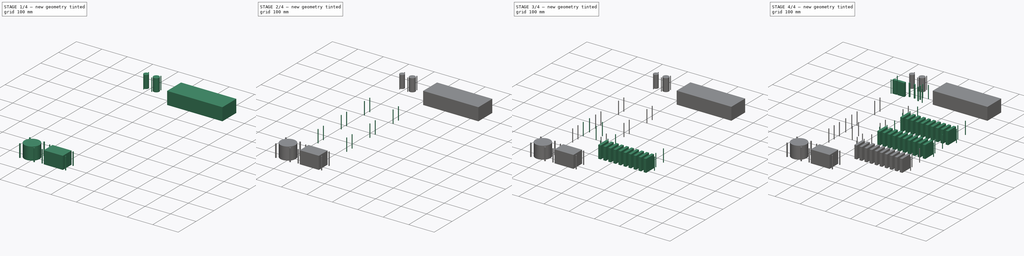
[diagram: build sequence overview — one tinted view per stage of 4, left to right]
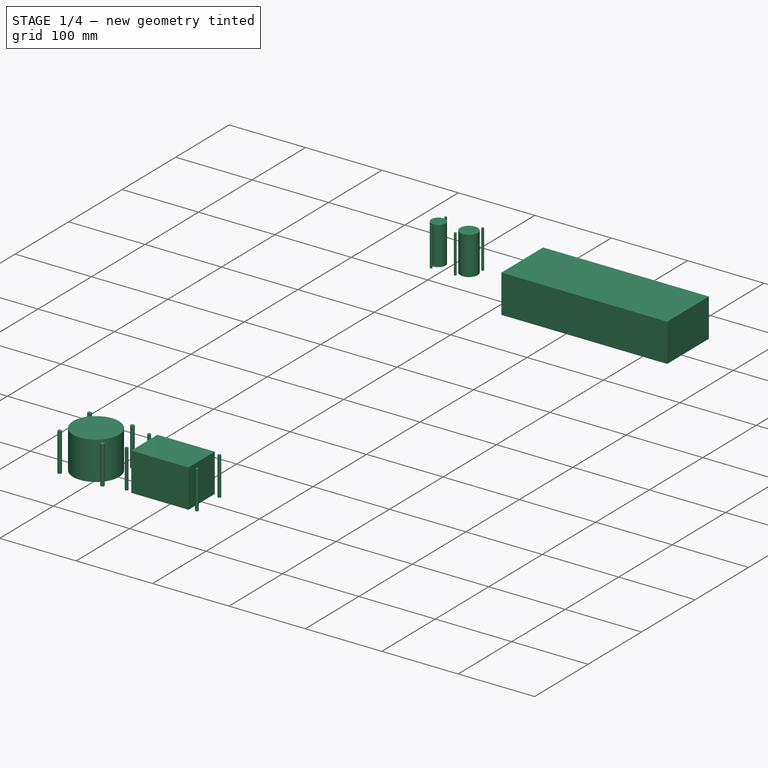
[diagram: stage 1 of 4 — iso view after this stage's code; geometry added in this stage tinted green]
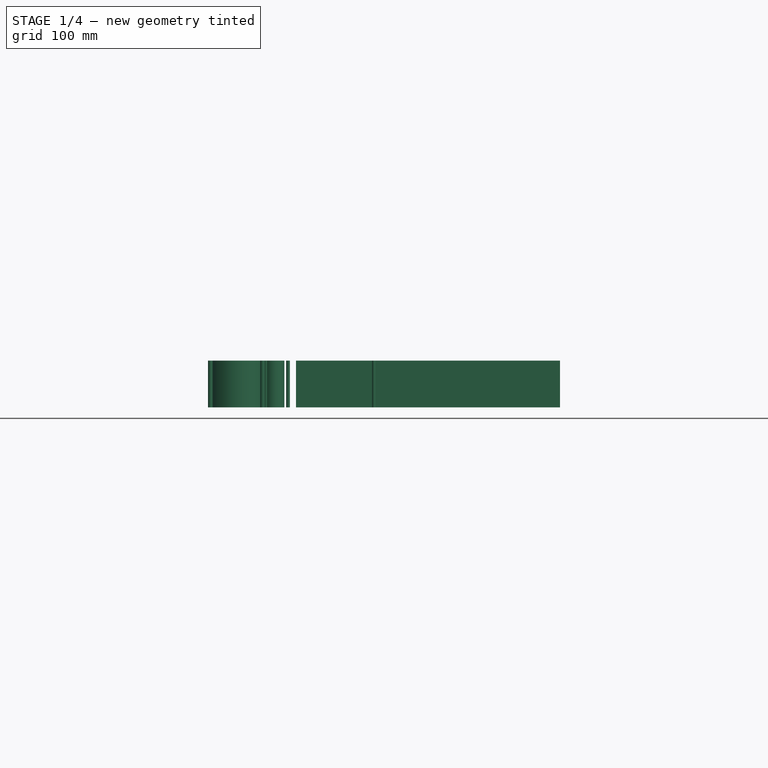
[diagram: stage 1 of 4 — front view after this stage's code; geometry added in this stage tinted green]
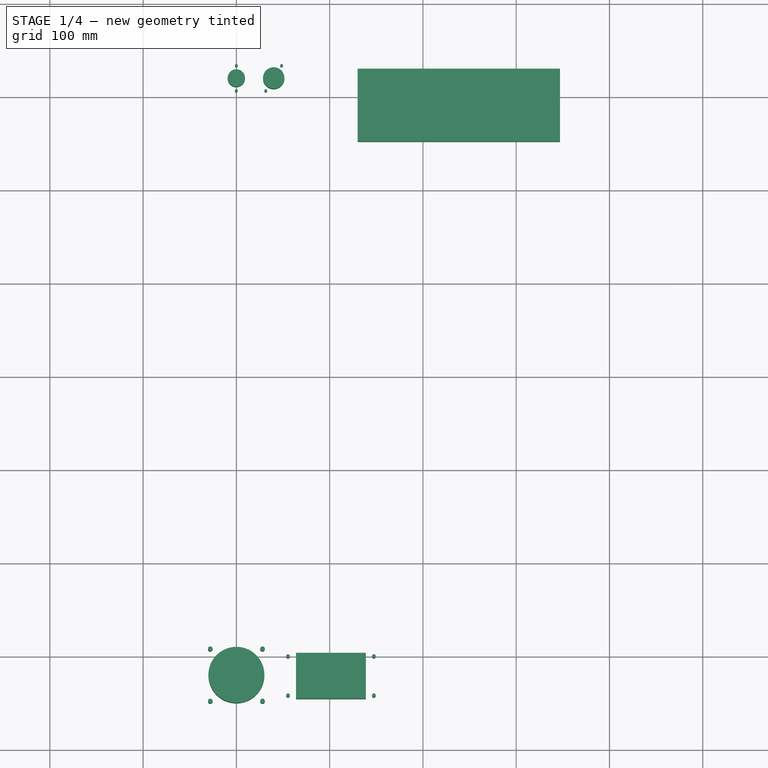
[diagram: stage 1 of 4 — top view after this stage's code; geometry added in this stage tinted green]
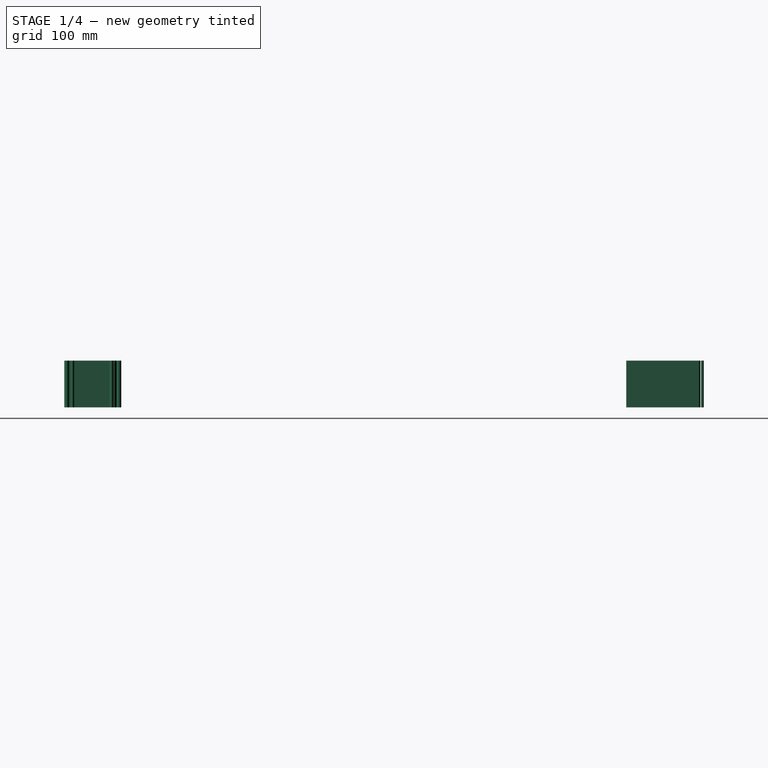
[diagram: stage 1 of 4 — right view after this stage's code; geometry added in this stage tinted green]
FCSTD DOCUMENT
Label: rack3u_padded
License: CC-BY 3.0
LicenseURL: http://creativecommons.org/licenses/by/3.0/
objects: Sketcher::SketchObject×12, PartDesign::Pad×11
note: 34 computed .brp shape members not serialized (recipe doc carries the construction recipe); baked Part::Feature solids carry a one-line shape summary decoded from their .brp

FEATURE [PartDesign::Pad] Pad008
  Length = 50
  Length2 = 100
  Sketch = -> Sketch002004003
  Type = 0
FEATURE [PartDesign::Pad] Pad009
  Length = 50
  Length2 = 100
  Sketch = -> Sketch002004004
  Type = 0
FEATURE [PartDesign::Pad] Pad010
  Length = 50
  Length2 = 100
  Sketch = -> Sketch002004005
  Type = 0
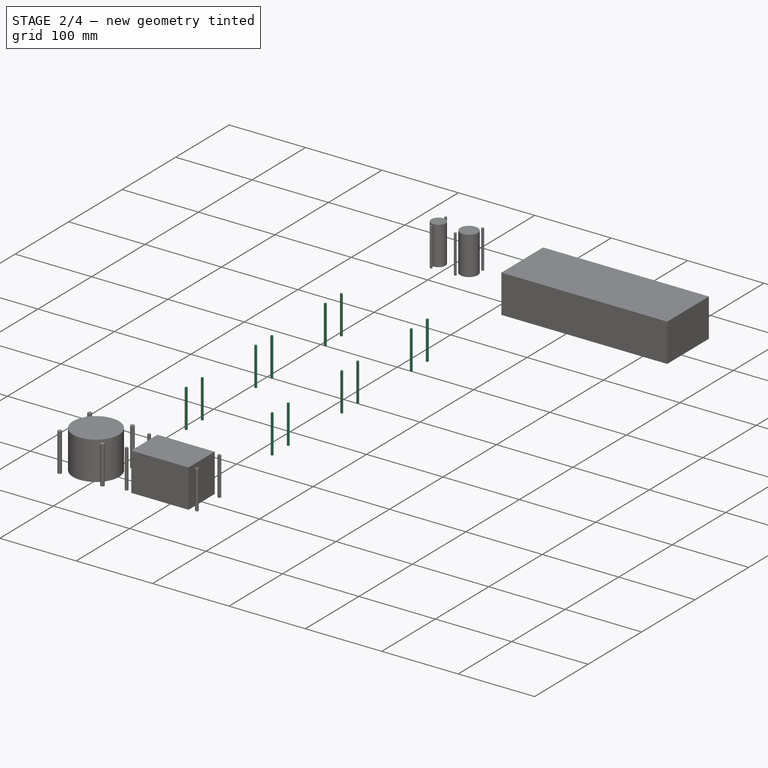
[diagram: stage 2 of 4 — iso view after this stage's code; geometry added in this stage tinted green]
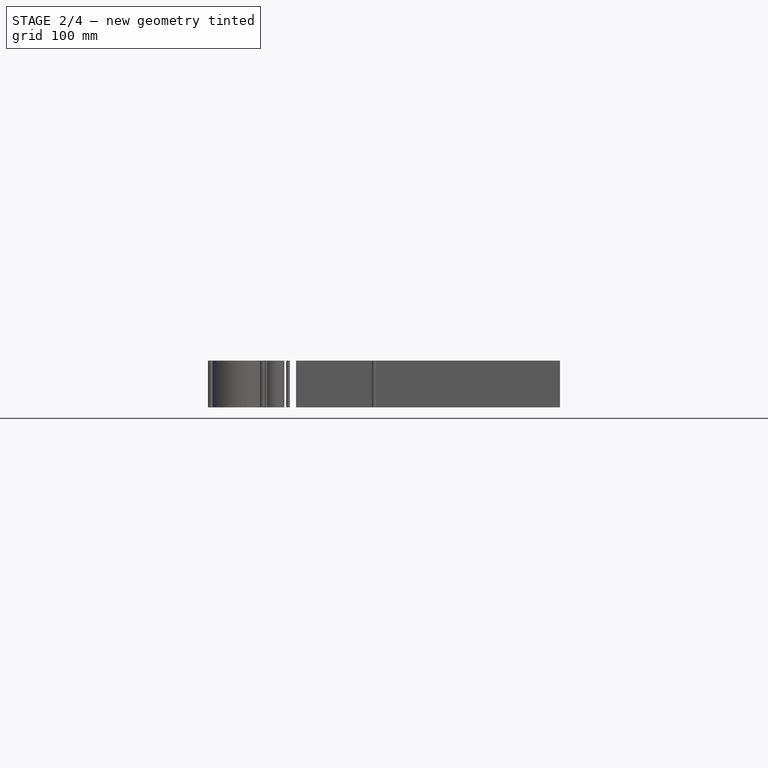
[diagram: stage 2 of 4 — front view after this stage's code; geometry added in this stage tinted green]
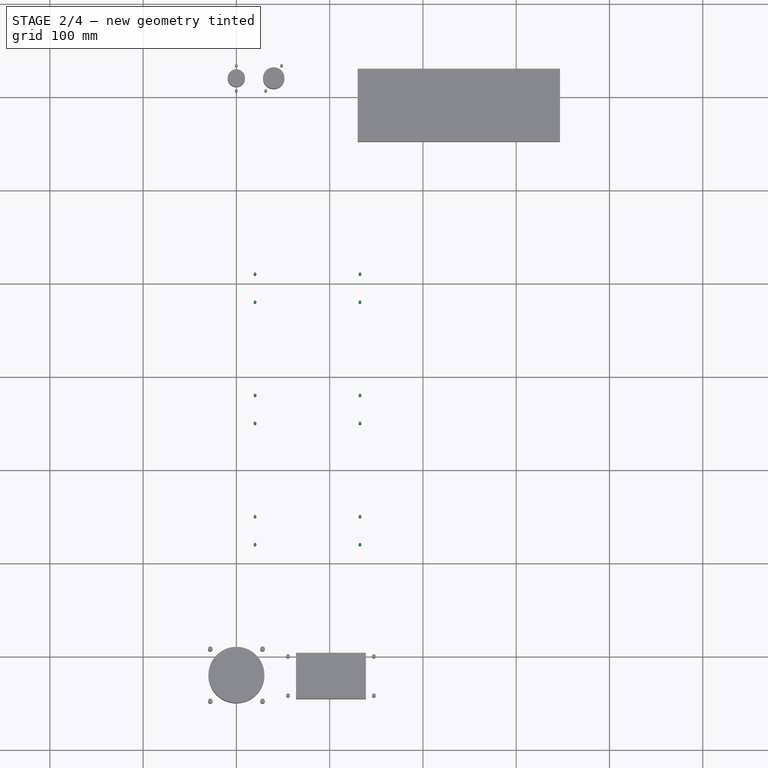
[diagram: stage 2 of 4 — top view after this stage's code; geometry added in this stage tinted green]
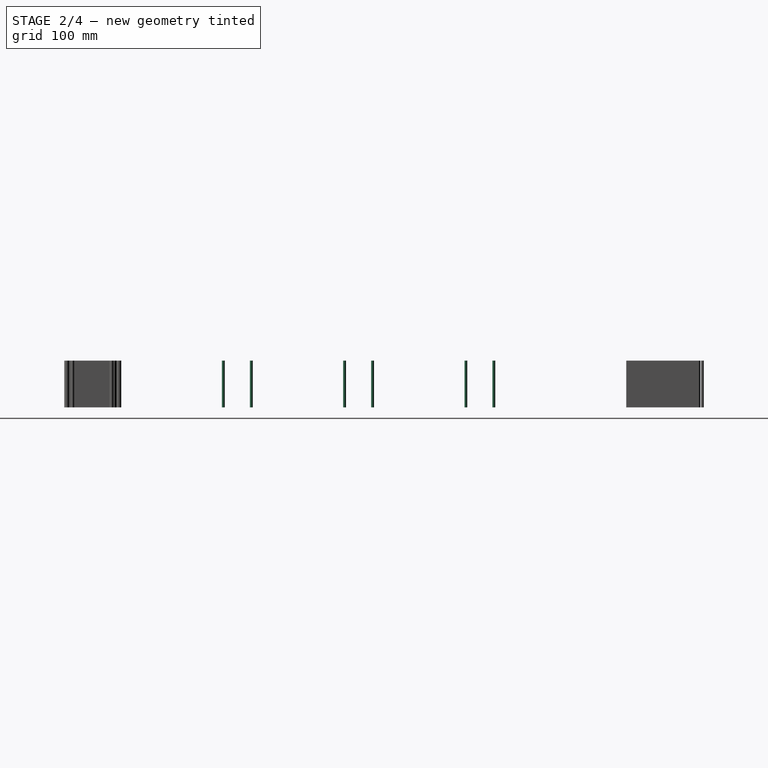
[diagram: stage 2 of 4 — right view after this stage's code; geometry added in this stage tinted green]
FEATURE [PartDesign::Pad] Pad005
  Length = 50
  Length2 = 100
  Sketch = -> Sketch002004
  Type = 0
FEATURE [PartDesign::Pad] Pad006
  Length = 50
  Length2 = 100
  Sketch = -> Sketch002004001
  Type = 0
FEATURE [PartDesign::Pad] Pad007
  Length = 50
  Length2 = 100
  Sketch = -> Sketch002004002
  Type = 0
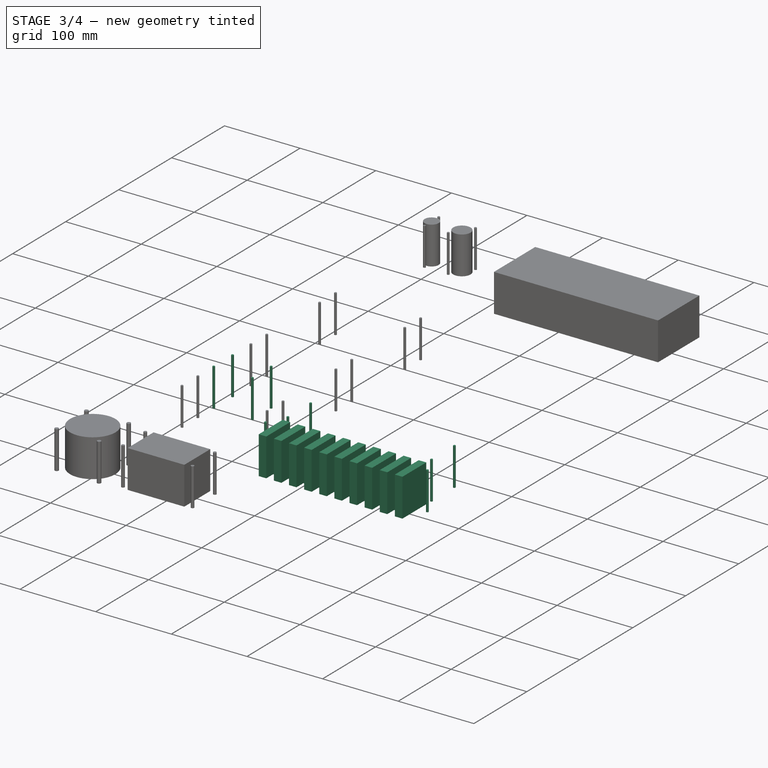
[diagram: stage 3 of 4 — iso view after this stage's code; geometry added in this stage tinted green]
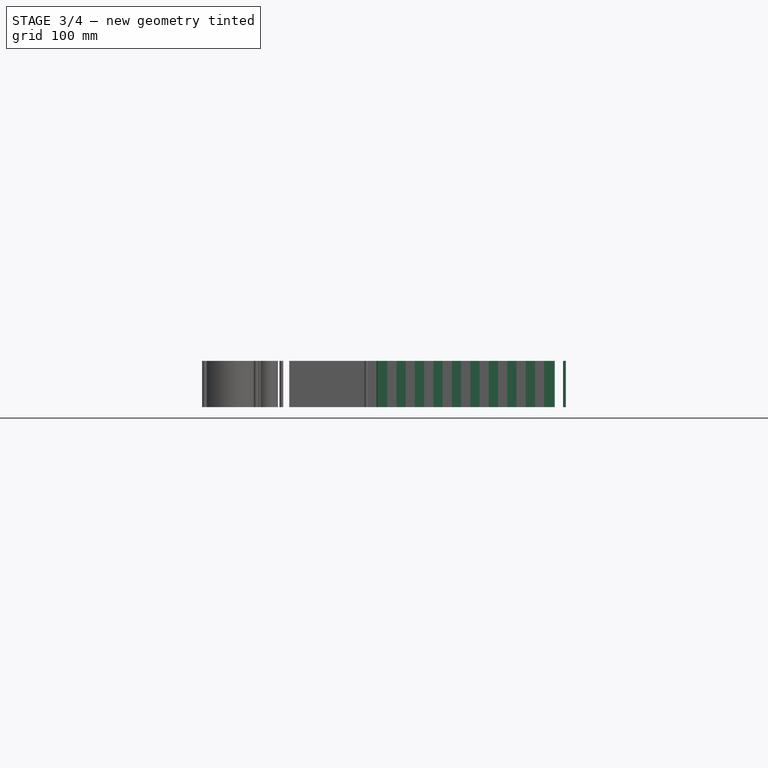
[diagram: stage 3 of 4 — front view after this stage's code; geometry added in this stage tinted green]
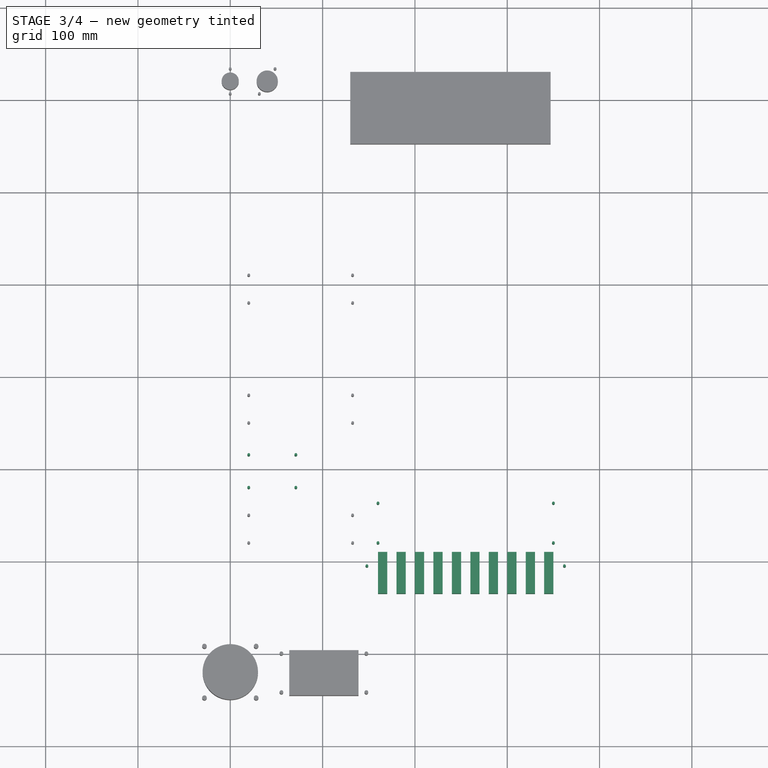
[diagram: stage 3 of 4 — top view after this stage's code; geometry added in this stage tinted green]
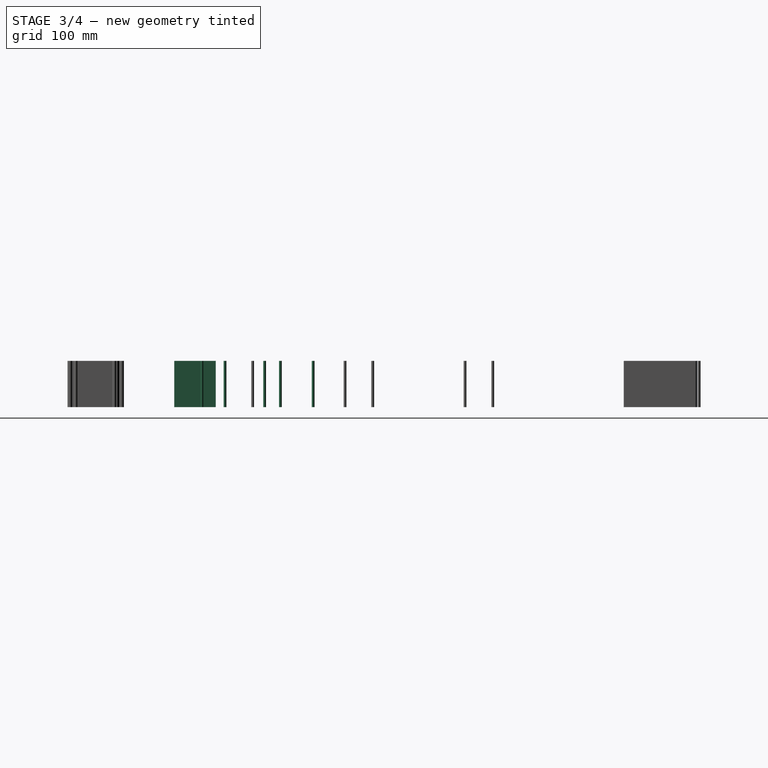
[diagram: stage 3 of 4 — right view after this stage's code; geometry added in this stage tinted green]
FEATURE [PartDesign::Pad] Pad003
  Length = 50
  Length2 = 100
  Sketch = -> Sketch002002
  Type = 0
FEATURE [PartDesign::Pad] Pad004
  Length = 50
  Length2 = 100
  Sketch = -> Sketch002003
  Type = 0
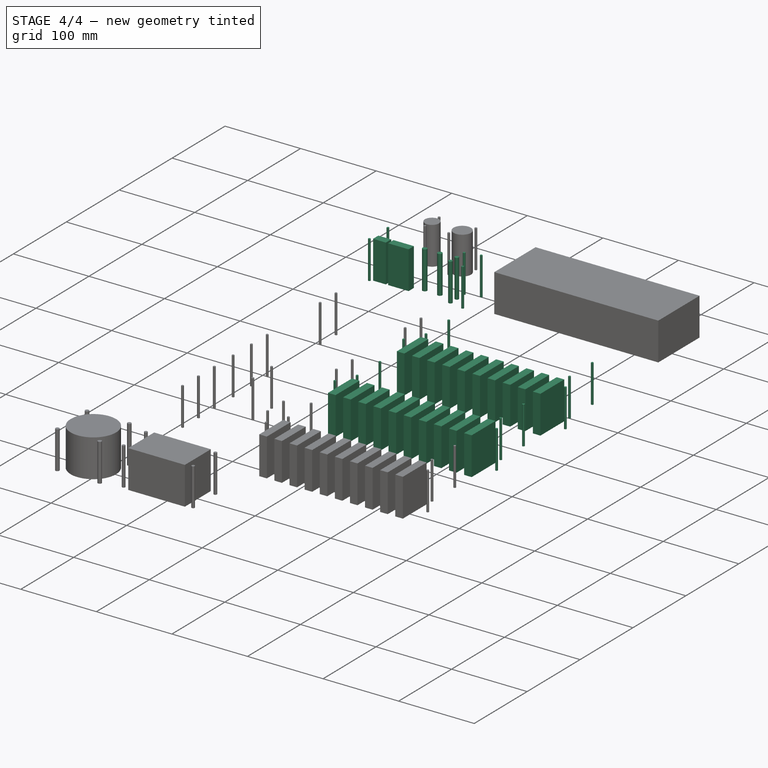
[diagram: stage 4 of 4 — iso view after this stage's code; geometry added in this stage tinted green]
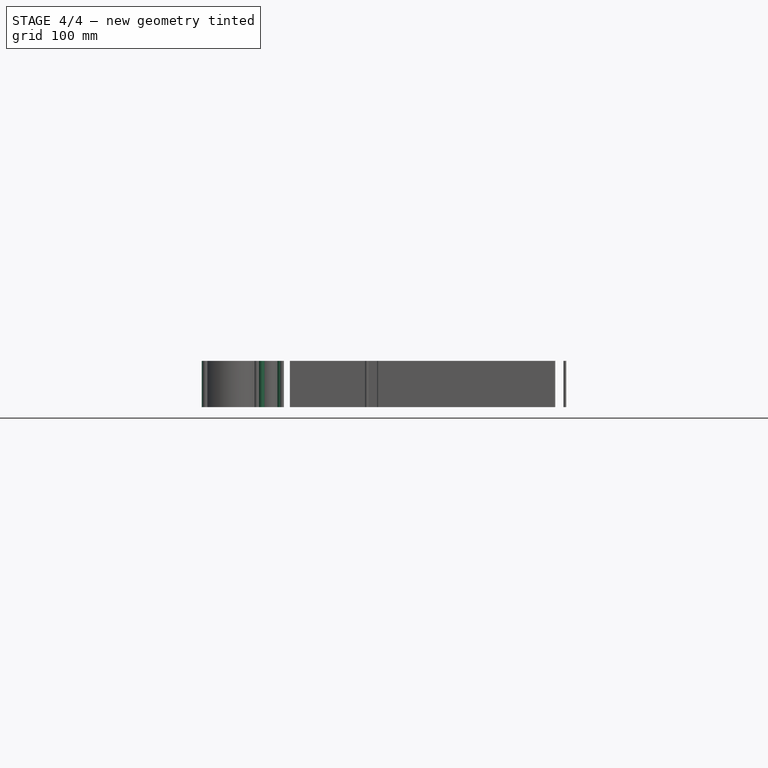
[diagram: stage 4 of 4 — front view after this stage's code; geometry added in this stage tinted green]
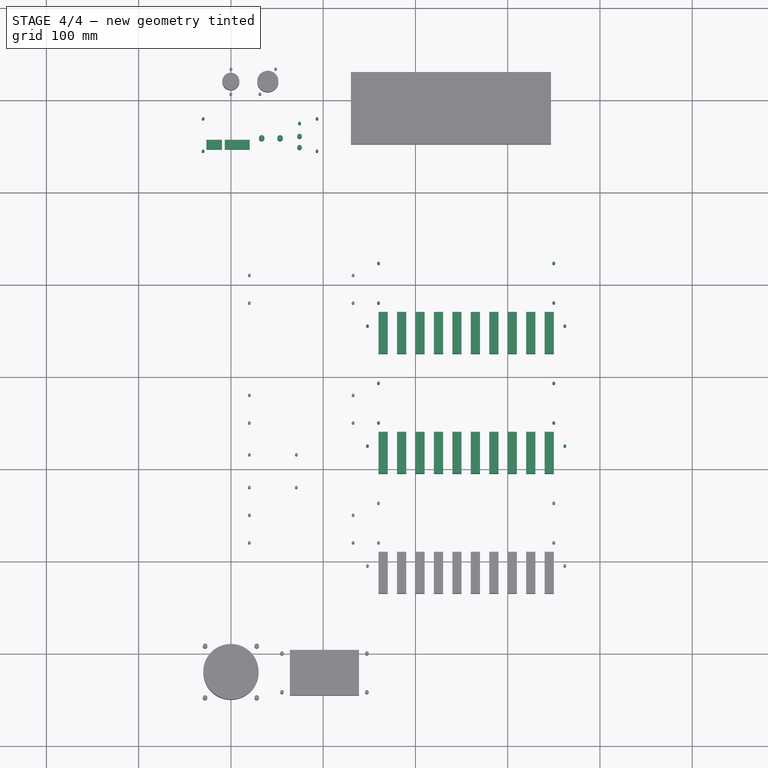
[diagram: stage 4 of 4 — top view after this stage's code; geometry added in this stage tinted green]
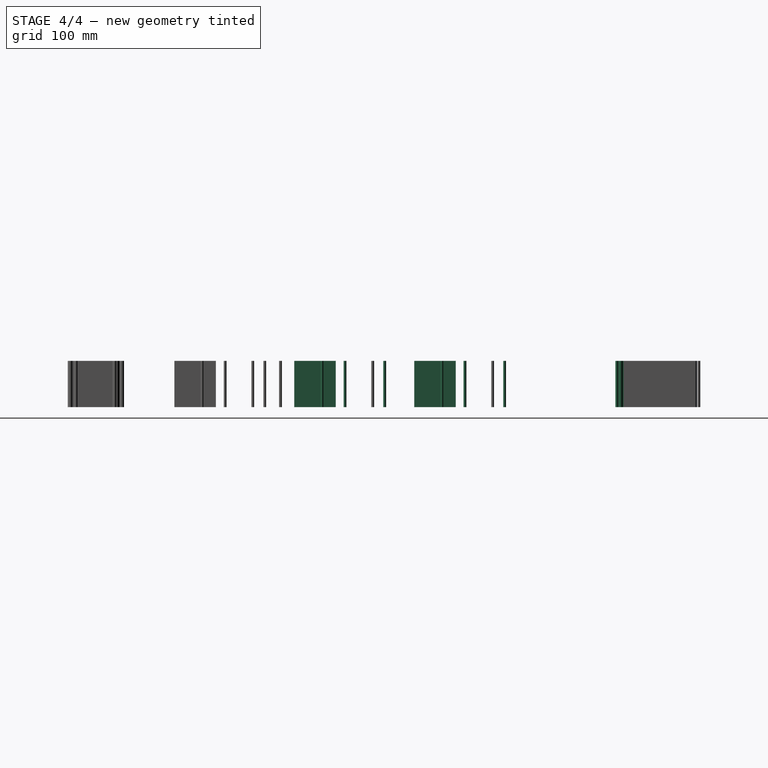
[diagram: stage 4 of 4 — right view after this stage's code; geometry added in this stage tinted green]
FEATURE [Sketcher::SketchObject] Sketch  label="lineout"
  sketch-geometry (36):
    g0: LineSegment StartX=148.885 StartY=25.9614 StartZ=0 EndX=583.885 EndY=25.9614 EndZ=0
    g1: LineSegment StartX=583.885 StartY=25.9614 StartZ=0 EndX=583.885 EndY=-456.639 EndZ=0
    g2: LineSegment StartX=583.885 StartY=-456.639 StartZ=0 EndX=148.885 EndY=-456.639 EndZ=0
    g3: LineSegment StartX=148.885 StartY=-456.639 StartZ=0 EndX=148.885 EndY=25.9614 EndZ=0
    g4: LineSegment StartX=125.385 StartY=25.9614 StartZ=0 EndX=607.985 EndY=25.9614 EndZ=0
    g5: LineSegment StartX=607.985 StartY=25.9614 StartZ=0 EndX=607.985 EndY=159.311 EndZ=0
    g6: LineSegment StartX=607.985 StartY=159.311 StartZ=0 EndX=125.385 EndY=159.311 EndZ=0
    g7: LineSegment StartX=125.385 StartY=159.311 StartZ=0 EndX=125.385 EndY=25.9614 EndZ=0
    g8: LineSegment StartX=583.885 StartY=25.9614 StartZ=0 EndX=717.235 EndY=25.9614 EndZ=0
    g9: LineSegment StartX=717.235 StartY=25.9614 StartZ=0 EndX=717.235 EndY=-456.639 EndZ=0
    g10: LineSegment StartX=717.235 StartY=-456.639 StartZ=0 EndX=583.885 EndY=-456.639 EndZ=0
    g11: LineSegment StartX=583.885 StartY=-456.639 StartZ=0 EndX=583.885 EndY=25.9614 EndZ=0
    g12: LineSegment StartX=148.885 StartY=25.9614 StartZ=0 EndX=15.5354 EndY=25.9614 EndZ=0
    g13: LineSegment StartX=15.5354 StartY=25.9614 StartZ=0 EndX=15.5354 EndY=-456.639 EndZ=0
    g14: LineSegment StartX=15.5354 StartY=-456.639 StartZ=0 EndX=148.885 EndY=-456.639 EndZ=0
    g15: LineSegment StartX=148.885 StartY=-456.639 StartZ=0 EndX=148.885 EndY=25.9614 EndZ=0
    g16: LineSegment StartX=148.885 StartY=-456.639 StartZ=0 EndX=583.885 EndY=-456.639 EndZ=0
    g17: LineSegment StartX=583.885 StartY=-456.639 StartZ=0 EndX=583.885 EndY=-589.989 EndZ=0
    g18: LineSegment StartX=583.885 StartY=-589.989 StartZ=0 EndX=148.885 EndY=-589.989 EndZ=0
    g19: LineSegment StartX=148.885 StartY=-589.989 StartZ=0 EndX=148.885 EndY=-456.639 EndZ=0
    g20: LineSegment StartX=850.937 StartY=24.6344 StartZ=0 EndX=1285.94 EndY=24.6344 EndZ=0
    g21: LineSegment StartX=1285.94 StartY=24.6344 StartZ=0 EndX=1285.94 EndY=-457.966 EndZ=0
    g22: LineSegment StartX=1285.94 StartY=-457.966 StartZ=0 EndX=850.937 EndY=-457.966 EndZ=0
    g23: LineSegment StartX=850.937 StartY=-457.966 StartZ=0 EndX=850.937 EndY=24.6344 EndZ=0
    g24: LineSegment StartX=717.235 StartY=-456.639 StartZ=0 EndX=727.235 EndY=-446.639 EndZ=0
    g25: LineSegment StartX=727.235 StartY=-446.639 StartZ=0 EndX=727.235 EndY=15.9614 EndZ=0
    g26: LineSegment StartX=727.235 StartY=15.9614 StartZ=0 EndX=717.235 EndY=25.9614 EndZ=0
    g27: LineSegment StartX=583.885 StartY=-589.989 StartZ=0 EndX=573.885 EndY=-599.989 EndZ=0
    g28: LineSegment StartX=573.885 StartY=-599.989 StartZ=0 EndX=158.885 EndY=-599.989 EndZ=0
    g29: LineSegment StartX=158.885 StartY=-599.989 StartZ=0 EndX=148.885 EndY=-589.989 EndZ=0
    g30: LineSegment StartX=15.5354 StartY=-456.639 StartZ=0 EndX=5.53542 EndY=-446.639 EndZ=0
    g31: LineSegment StartX=5.53542 StartY=-446.639 StartZ=0 EndX=5.53542 EndY=15.9614 EndZ=0
    g32: LineSegment StartX=5.53542 StartY=15.9614 StartZ=0 EndX=15.5354 EndY=25.9614 EndZ=0
    g33: LineSegment StartX=149.185 StartY=159.311 StartZ=0 EndX=159.185 EndY=169.311 EndZ=0
    g34: LineSegment StartX=159.185 StartY=169.311 StartZ=0 EndX=574.764 EndY=169.311 EndZ=0
    g35: LineSegment StartX=574.764 StartY=169.311 StartZ=0 EndX=584.764 EndY=159.311 EndZ=0
  constraints (98):
    c: Coincident(g0,g1)
    c: Coincident(g1,g2)
    c: Coincident(g2,g3)
    c: Coincident(g3,g0)
    c: Horizontal(g0)
    c: Horizontal(g2)
    c: Vertical(g1)
    c: Vertical(g3)
    c: Coincident(g4,g5)
    c: Coincident(g5,g6)
    c: Coincident(g6,g7)
    c: Coincident(g7,g4)
    c: Horizontal(g4)
    c: Horizontal(g6)
    c: Vertical(g5)
    c: Vertical(g7)
    c: Coincident(g8,g9)
    c: Coincident(g9,g10)
    c: Coincident(g10,g11)
    c: Coincident(g11,g8)
    c: Horizontal(g8)
    c: Horizontal(g10)
    c: Vertical(g9)
    c: Vertical(g11)
    c: Coincident(g12,g13)
    c: Coincident(g13,g14)
    c: Coincident(g14,g15)
    c: Coincident(g15,g12)
    c: Horizontal(g12)
    c: Horizontal(g14)
    c: Vertical(g13)
    c: Vertical(g15)
    c: Coincident(g16,g17)
    c: Coincident(g17,g18)
    c: Coincident(g18,g19)
    c: Coincident(g19,g16)
    c: Horizontal(g16)
    c: Horizontal(g18)
    c: Vertical(g17)
    c: Vertical(g19)
    c: Distance(g18) = 435
    c: Distance(g13) = 482.6
    c: Distance(g19) = 133.35
    c: Coincident(g16,g14)
    c: Equal(g19,g14)
    c: Coincident(g14,g2)
    c: Coincident(g1,g10)
    c: Coincident(g1,g16)
    c: Equal(g10,g17)
    c: Equal(g12,g7)
    c: Distance(g6) = 482.6
    c: Tangent(g4,g0)
    c: Coincident(g12,g0)
    c: Coincident(g8,g0)
    c: Distance(g4,g12) = 109.85
    c: Coincident(g20,g21)
    c: Coincident(g21,g22)
    c: Coincident(g22,g23)
    c: Coincident(g23,g20)
    c: Horizontal(g20)
    c: Horizontal(g22)
    c: Vertical(g21)
    c: Vertical(g23)
    c: Equal(g22,g18)
    c: Equal(g23,g13)
    c: Coincident(g9,g24)
    c: Coincident(g24,g25)
    c: Vertical(g25)
    c: Coincident(g25,g26)
    c: Coincident(g26,g8)
    c: Angle(g9,g26) = 0.785398
    c: Angle(g24,g9) = 0.785398
    c: DistanceX(g25,g8) = -10
    c: Coincident(g17,g27)
    c: Coincident(g27,g28)
    c: Horizontal(g28)
    c: Coincident(g28,g29)
    c: Coincident(g29,g18)
    c: Angle(g29,g18) = 0.785398
    c: Angle(g18,g27) = 0.785398
    c: Equal(g24,g27)
    c: Coincident(g13,g30)
    c: Coincident(g30,g31)
    c: Vertical(g31)
    c: Coincident(g31,g32)
    c: Coincident(g32,g12)
    c: Angle(g32,g13) = 0.785398
    c: Angle(g13,g30) = 0.785398
    c: Equal(g29,g30)
    c: Coincident(g33,g34)
    c: Horizontal(g34)
    c: Coincident(g34,g35)
    c: Angle(g6,g33) = 0.785398
    c: Angle(g35,g6) = 0.785398
    c: PointOnObject(g35,g6)
    c: PointOnObject(g33,g6)
    c: DistanceY(g34,g35) = -10
    c: DistanceX(g33,g6) = -23.8
FEATURE [Sketcher::SketchObject] Sketch001  label="panel"
  sketch-geometry (17):
    g0: Circle CenterX=169.861 CenterY=79.6084 CenterZ=0 NormalX=0 NormalY=0 NormalZ=1 Radius=1.5
    g1: Circle CenterX=169.861 CenterY=44.6084 CenterZ=0 NormalX=0 NormalY=0 NormalZ=1 Radius=1.5
    g2: Circle CenterX=293.361 CenterY=79.6084 CenterZ=0 NormalX=0 NormalY=0 NormalZ=1 Radius=1.5
    g3: Circle CenterX=293.361 CenterY=44.6084 CenterZ=0 NormalX=0 NormalY=0 NormalZ=1 Radius=1.5
    g4: LineSegment StartX=173.361 StartY=56.6084 StartZ=0 EndX=190.361 EndY=56.6084 EndZ=0
    g5: LineSegment StartX=190.361 StartY=56.6084 StartZ=0 EndX=190.361 EndY=46.6084 EndZ=0
    g6: LineSegment StartX=190.361 StartY=46.6084 StartZ=0 EndX=173.361 EndY=46.6084 EndZ=0
    g7: LineSegment StartX=173.361 StartY=46.6084 StartZ=0 EndX=173.361 EndY=56.6084 EndZ=0
    g8: LineSegment StartX=193.361 StartY=56.6084 StartZ=0 EndX=220.361 EndY=56.6084 EndZ=0
    g9: LineSegment StartX=220.361 StartY=56.6084 StartZ=0 EndX=220.361 EndY=46.6084 EndZ=0
    g10: LineSegment StartX=220.361 StartY=46.6084 StartZ=0 EndX=193.361 EndY=46.6084 EndZ=0
    g11: LineSegment StartX=193.361 StartY=46.6084 StartZ=0 EndX=193.361 EndY=56.6084 EndZ=0
    g12: Circle CenterX=233.361 CenterY=58.6084 CenterZ=0 NormalX=0 NormalY=0 NormalZ=1 Radius=3
    g13: Circle CenterX=253.361 CenterY=58.6084 CenterZ=0 NormalX=0 NormalY=0 NormalZ=1 Radius=3
    g14: Circle CenterX=274.361 CenterY=48.6084 CenterZ=0 NormalX=0 NormalY=0 NormalZ=1 Radius=2.5
    g15: Circle CenterX=274.361 CenterY=60.6084 CenterZ=0 NormalX=0 NormalY=0 NormalZ=1 Radius=2.5
    g16: Circle CenterX=274.361 CenterY=74.6084 CenterZ=0 NormalX=0 NormalY=0 NormalZ=1 Radius=1.6
  constraints (49):
    c: Radius(g0) = 1.5
    c: Equal(g2,g0)
    c: Equal(g3,g0)
    c: Equal(g1,g0)
    c: DistanceX(g2,g0) = -123.5
    c: DistanceY(g3,g2) = 35
    c: DistanceY(g1,g0) = 35
    c: DistanceX(g1,g3) = 123.5
    c: DistanceY(g0,g2) = 0
    c: DistanceX(g0,g1) = 0
    c: Coincident(g4,g5)
    c: Coincident(g5,g6)
    c: Coincident(g6,g7)
    c: Coincident(g7,g4)
    c: Horizontal(g4)
    c: Horizontal(g6)
    c: Vertical(g5)
    c: Vertical(g7)
    c: Coincident(g8,g9)
    c: Coincident(g9,g10)
    c: Coincident(g10,g11)
    c: Coincident(g11,g8)
    c: Horizontal(g8)
    c: Horizontal(g10)
    c: Vertical(g9)
    c: Vertical(g11)
    c: Radius(g12) = 3
    c: Equal(g13,g12)
    c: Radius(g14) = 2.5
    c: Equal(g14,g15)
    c: Radius(g16) = 1.6
    c: DistanceX(g14,g15) = 0
    c: DistanceX(g15,g16) = 0
    c: DistanceY(g14,g15) = 12
    c: DistanceY(g15,g16) = 14
    c: DistanceY(g14,g3) = -4
    c: DistanceX(g14,g3) = 19
    c: DistanceX(g14,g13) = -21
    c: DistanceX(g12,g13) = 20
    c: DistanceY(g12,g13) = 0
    c: DistanceY(g13,g3) = -14
    c: Distance(g7) = 10
    c: Distance(g6) = 17
    c: Distance(g10) = 27
    c: Equal(g11,g5)
    c: DistanceX(g10,g5) = -3
    c: DistanceY(g5,g10) = 0
    c: DistanceY(g1,g6) = 2
    c: DistanceX(g6,g1) = -3.5
FEATURE [Sketcher::SketchObject] Sketch002  label="dimmer1"
  sketch-geometry (46):
    g0: Circle CenterX=360 CenterY=-77 CenterZ=0 NormalX=0 NormalY=0 NormalZ=1 Radius=1.5
    g1: Circle CenterX=360 CenterY=-120 CenterZ=0 NormalX=0 NormalY=0 NormalZ=1 Radius=1.5
    g2: Circle CenterX=550 CenterY=-77 CenterZ=0 NormalX=0 NormalY=0 NormalZ=1 Radius=1.5
    g3: Circle CenterX=550 CenterY=-120 CenterZ=0 NormalX=0 NormalY=0 NormalZ=1 Radius=1.5
    g4: Circle CenterX=348 CenterY=-145 CenterZ=0 NormalX=0 NormalY=0 NormalZ=1 Radius=1.5
    g5: Circle CenterX=562 CenterY=-145 CenterZ=0 NormalX=0 NormalY=0 NormalZ=1 Radius=1.5
    g6: LineSegment StartX=540 StartY=-130 StartZ=0 EndX=550 EndY=-130 EndZ=0
    g7: LineSegment StartX=550 StartY=-130 StartZ=0 EndX=550 EndY=-175 EndZ=0
    g8: LineSegment StartX=550 StartY=-175 StartZ=0 EndX=540 EndY=-175 EndZ=0
    g9: LineSegment StartX=540 StartY=-175 StartZ=0 EndX=540 EndY=-130 EndZ=0
    g10: LineSegment StartX=530 StartY=-130 StartZ=0 EndX=520 EndY=-130 EndZ=0
    g11: LineSegment StartX=520 StartY=-130 StartZ=0 EndX=520 EndY=-175 EndZ=0
    g12: LineSegment StartX=520 StartY=-175 StartZ=0 EndX=530 EndY=-175 EndZ=0
    g13: LineSegment StartX=530 StartY=-175 StartZ=0 EndX=530 EndY=-130 EndZ=0
    g14: LineSegment StartX=510 StartY=-130 StartZ=0 EndX=500 EndY=-130 EndZ=0
    g15: LineSegment StartX=500 StartY=-130 StartZ=0 EndX=500 EndY=-175 EndZ=0
    g16: LineSegment StartX=500 StartY=-175 StartZ=0 EndX=510 EndY=-175 EndZ=0
    g17: LineSegment StartX=510 StartY=-175 StartZ=0 EndX=510 EndY=-130 EndZ=0
    g18: LineSegment StartX=490 StartY=-130 StartZ=0 EndX=480 EndY=-130 EndZ=0
    g19: LineSegment StartX=480 StartY=-130 StartZ=0 EndX=480 EndY=-175 EndZ=0
    g20: LineSegment StartX=480 StartY=-175 StartZ=0 EndX=490 EndY=-175 EndZ=0
    g21: LineSegment StartX=490 StartY=-175 StartZ=0 EndX=490 EndY=-130 EndZ=0
    g22: LineSegment StartX=470 StartY=-130 StartZ=0 EndX=460 EndY=-130 EndZ=0
    g23: LineSegment StartX=460 StartY=-130 StartZ=0 EndX=460 EndY=-175 EndZ=0
    g24: LineSegment StartX=460 StartY=-175 StartZ=0 EndX=470 EndY=-175 EndZ=0
    g25: LineSegment StartX=470 StartY=-175 StartZ=0 EndX=470 EndY=-130 EndZ=0
    g26: LineSegment StartX=450 StartY=-130 StartZ=0 EndX=440 EndY=-130 EndZ=0
    g27: LineSegment StartX=440 StartY=-130 StartZ=0 EndX=440 EndY=-175 EndZ=0
    g28: LineSegment StartX=440 StartY=-175 StartZ=0 EndX=450 EndY=-175 EndZ=0
    g29: LineSegment StartX=450 StartY=-175 StartZ=0 EndX=450 EndY=-130 EndZ=0
    g30: LineSegment StartX=430 StartY=-130 StartZ=0 EndX=420 EndY=-130 EndZ=0
    g31: LineSegment StartX=420 StartY=-130 StartZ=0 EndX=420 EndY=-175 EndZ=0
    g32: LineSegment StartX=420 StartY=-175 StartZ=0 EndX=430 EndY=-175 EndZ=0
    g33: LineSegment StartX=430 StartY=-175 StartZ=0 EndX=430 EndY=-130 EndZ=0
    g34: LineSegment StartX=410 StartY=-130 StartZ=0 EndX=400 EndY=-130 EndZ=0
    g35: LineSegment StartX=400 StartY=-130 StartZ=0 EndX=400 EndY=-175 EndZ=0
    g36: LineSegment StartX=400 StartY=-175 StartZ=0 EndX=410 EndY=-175 EndZ=0
    g37: LineSegment StartX=410 StartY=-175 StartZ=0 EndX=410 EndY=-130 EndZ=0
    g38: LineSegment StartX=390 StartY=-130 StartZ=0 EndX=380 EndY=-130 EndZ=0
    g39: LineSegment StartX=380 StartY=-130 StartZ=0 EndX=380 EndY=-175 EndZ=0
    g40: LineSegment StartX=380 StartY=-175 StartZ=0 EndX=390 EndY=-175 EndZ=0
    g41: LineSegment StartX=390 StartY=-175 StartZ=0 EndX=390 EndY=-130 EndZ=0
    g42: LineSegment StartX=370 StartY=-130 StartZ=0 EndX=360 EndY=-130 EndZ=0
    g43: LineSegment StartX=360 StartY=-130 StartZ=0 EndX=360 EndY=-175 EndZ=0
    g44: LineSegment StartX=360 StartY=-175 StartZ=0 EndX=370 EndY=-175 EndZ=0
    g45: LineSegment StartX=370 StartY=-175 StartZ=0 EndX=370 EndY=-130 EndZ=0
  constraints (136):
    c: Radius(g0) = 1.5
    c: Equal(g2,g0)
    c: Equal(g3,g0)
    c: Equal(g1,g0)
    c: Equal(g4,g0)
    c: Equal(g5,g0)
    c: DistanceY(g0,g1) = -43
    c: DistanceY(g2,g3) = -43
    c: DistanceX(g0,g2) = 190
    c: DistanceX(g1,g0) = 0
    c: DistanceX(g3,g2) = 0
    c: DistanceY(g0,g2) = 0
    c: DistanceY(g1,g4) = -25
    c: DistanceY(g5,g3) = 25
    c: DistanceX(g3,g5) = 12
    c: DistanceX(g4,g1) = 12
    c: Coincident(g6,g7)
    c: Coincident(g7,g8)
    c: Coincident(g8,g9)
    c: Coincident(g9,g6)
    c: Horizontal(g6)
    c: Horizontal(g8)
    c: Vertical(g7)
    c: Vertical(g9)
    c: Distance(g7) = 45
    c: Distance(g8) = 10
    c: Coincident(g10,g11)
    c: Coincident(g11,g12)
    c: Coincident(g12,g13)
    c: Coincident(g13,g10)
    c: Horizontal(g10)
    c: Horizontal(g12)
    c: Vertical(g11)
    c: Vertical(g13)
    c: Equal(g13,g9)
    c: Equal(g10,g6)
    c: DistanceY(g10,g6) = 0
    c: DistanceX(g10,g6) = 10
    c: Coincident(g14,g15)
    c: Coincident(g15,g16)
    c: Coincident(g16,g17)
    c: Coincident(g17,g14)
    c: Horizontal(g14)
    c: Horizontal(g16)
    c: Vertical(g15)
    c: Vertical(g17)
    c: Coincident(g18,g19)
    c: Coincident(g19,g20)
    c: Coincident(g20,g21)
    c: Coincident(g21,g18)
    c: Horizontal(g18)
    c: Horizontal(g20)
    c: Vertical(g19)
    c: Vertical(g21)
    c: Coincident(g22,g23)
    c: Coincident(g23,g24)
    c: Coincident(g24,g25)
    c: Coincident(g25,g22)
    c: Horizontal(g22)
    c: Horizontal(g24)
    c: Vertical(g23)
    c: Vertical(g25)
    c: Equal(g10,g14)
    c: Equal(g14,g18)
    c: Equal(g18,g22)
    c: DistanceY(g10,g14) = 0
    c: DistanceY(g14,g18) = 0
    c: DistanceY(g18,g22) = 0
    c: Equal(g11,g17)
    c: Equal(g15,g21)
    c: Equal(g19,g25)
    c: DistanceX(g14,g10) = 10
    c: DistanceX(g18,g14) = 10
    c: DistanceX(g22,g18) = 10
    c: Coincident(g26,g27)
    c: Coincident(g27,g28)
    c: Coincident(g28,g29)
    c: Coincident(g29,g26)
    c: Horizontal(g26)
    c: Horizontal(g28)
    c: Vertical(g27)
    c: Vertical(g29)
    c: Coincident(g30,g31)
    c: Coincident(g31,g32)
    c: Coincident(g32,g33)
    c: Coincident(g33,g30)
    c: Horizontal(g30)
    c: Horizontal(g32)
    c: Vertical(g31)
    c: Vertical(g33)
    c: Coincident(g34,g35)
    c: Coincident(g35,g36)
    c: Coincident(g36,g37)
    c: Coincident(g37,g34)
    c: Horizontal(g34)
    c: Horizontal(g36)
    c: Vertical(g35)
    c: Vertical(g37)
    c: Coincident(g38,g39)
    c: Coincident(g39,g40)
    c: Coincident(g40,g41)
    c: Coincident(g41,g38)
    c: Horizontal(g38)
    c: Horizontal(g40)
    c: Vertical(g39)
    c: Vertical(g41)
    c: Coincident(g42,g43)
    c: Coincident(g43,g44)
    c: Coincident(g44,g45)
    c: Coincident(g45,g42)
    c: Horizontal(g42)
    c: Horizontal(g44)
    c: Vertical(g43)
    c: Vertical(g45)
    c: Equal(g26,g22)
    c: Equal(g26,g30)
    c: Equal(g30,g34)
    c: Equal(g34,g38)
    c: Equal(g38,g42)
    c: Equal(g23,g29)
    c: Equal(g27,g33)
    c: Equal(g31,g37)
    c: Equal(g35,g41)
    c: Equal(g39,g45)
    c: DistanceY(g22,g26) = 0
    c: DistanceY(g26,g30) = 0
    c: DistanceY(g30,g34) = 0
    c: DistanceY(g34,g38) = 0
    c: DistanceY(g38,g42) = 0
    c: DistanceX(g22,g26) = -10
    c: DistanceX(g26,g30) = -10
    c: DistanceX(g30,g34) = -10
    c: DistanceX(g34,g38) = -10
    c: DistanceX(g38,g42) = -10
    c: DistanceX(g6,g3) = 0
    c: DistanceY(g6,g3) = 10
FEATURE [Sketcher::SketchObject] Sketch002001  label="dimmer2"
  sketch-geometry (46):
    g0: Circle CenterX=360 CenterY=-207 CenterZ=0 NormalX=0 NormalY=0 NormalZ=1 Radius=1.5
    g1: Circle CenterX=360 CenterY=-250 CenterZ=0 NormalX=0 NormalY=0 NormalZ=1 Radius=1.5
    g2: Circle CenterX=550 CenterY=-207 CenterZ=0 NormalX=0 NormalY=0 NormalZ=1 Radius=1.5
    g3: Circle CenterX=550 CenterY=-250 CenterZ=0 NormalX=0 NormalY=0 NormalZ=1 Radius=1.5
    g4: Circle CenterX=348 CenterY=-275 CenterZ=0 NormalX=0 NormalY=0 NormalZ=1 Radius=1.5
    g5: Circle CenterX=562 CenterY=-275 CenterZ=0 NormalX=0 NormalY=0 NormalZ=1 Radius=1.5
    g6: LineSegment StartX=540 StartY=-260 StartZ=0 EndX=550 EndY=-260 EndZ=0
    g7: LineSegment StartX=550 StartY=-260 StartZ=0 EndX=550 EndY=-305 EndZ=0
    g8: LineSegment StartX=550 StartY=-305 StartZ=0 EndX=540 EndY=-305 EndZ=0
    g9: LineSegment StartX=540 StartY=-305 StartZ=0 EndX=540 EndY=-260 EndZ=0
    g10: LineSegment StartX=530 StartY=-260 StartZ=0 EndX=520 EndY=-260 EndZ=0
    g11: LineSegment StartX=520 StartY=-260 StartZ=0 EndX=520 EndY=-305 EndZ=0
    g12: LineSegment StartX=520 StartY=-305 StartZ=0 EndX=530 EndY=-305 EndZ=0
    g13: LineSegment StartX=530 StartY=-305 StartZ=0 EndX=530 EndY=-260 EndZ=0
    g14: LineSegment StartX=510 StartY=-260 StartZ=0 EndX=500 EndY=-260 EndZ=0
    g15: LineSegment StartX=500 StartY=-260 StartZ=0 EndX=500 EndY=-305 EndZ=0
    g16: LineSegment StartX=500 StartY=-305 StartZ=0 EndX=510 EndY=-305 EndZ=0
    g17: LineSegment StartX=510 StartY=-305 StartZ=0 EndX=510 EndY=-260 EndZ=0
    g18: LineSegment StartX=490 StartY=-260 StartZ=0 EndX=480 EndY=-260 EndZ=0
    g19: LineSegment StartX=480 StartY=-260 StartZ=0 EndX=480 EndY=-305 EndZ=0
    g20: LineSegment StartX=480 StartY=-305 StartZ=0 EndX=490 EndY=-305 EndZ=0
    g21: LineSegment StartX=490 StartY=-305 StartZ=0 EndX=490 EndY=-260 EndZ=0
    g22: LineSegment StartX=470 StartY=-260 StartZ=0 EndX=460 EndY=-260 EndZ=0
    g23: LineSegment StartX=460 StartY=-260 StartZ=0 EndX=460 EndY=-305 EndZ=0
    g24: LineSegment StartX=460 StartY=-305 StartZ=0 EndX=470 EndY=-305 EndZ=0
    g25: LineSegment StartX=470 StartY=-305 StartZ=0 EndX=470 EndY=-260 EndZ=0
    g26: LineSegment StartX=450 StartY=-260 StartZ=0 EndX=440 EndY=-260 EndZ=0
    g27: LineSegment StartX=440 StartY=-260 StartZ=0 EndX=440 EndY=-305 EndZ=0
    g28: LineSegment StartX=440 StartY=-305 StartZ=0 EndX=450 EndY=-305 EndZ=0
    g29: LineSegment StartX=450 StartY=-305 StartZ=0 EndX=450 EndY=-260 EndZ=0
    g30: LineSegment StartX=430 StartY=-260 StartZ=0 EndX=420 EndY=-260 EndZ=0
    g31: LineSegment StartX=420 StartY=-260 StartZ=0 EndX=420 EndY=-305 EndZ=0
    g32: LineSegment StartX=420 StartY=-305 StartZ=0 EndX=430 EndY=-305 EndZ=0
    g33: LineSegment StartX=430 StartY=-305 StartZ=0 EndX=430 EndY=-260 EndZ=0
    g34: LineSegment StartX=410 StartY=-260 StartZ=0 EndX=400 EndY=-260 EndZ=0
    g35: LineSegment StartX=400 StartY=-260 StartZ=0 EndX=400 EndY=-305 EndZ=0
    g36: LineSegment StartX=400 StartY=-305 StartZ=0 EndX=410 EndY=-305 EndZ=0
    g37: LineSegment StartX=410 StartY=-305 StartZ=0 EndX=410 EndY=-260 EndZ=0
    g38: LineSegment StartX=390 StartY=-260 StartZ=0 EndX=380 EndY=-260 EndZ=0
    g39: LineSegment StartX=380 StartY=-260 StartZ=0 EndX=380 EndY=-305 EndZ=0
    g40: LineSegment StartX=380 StartY=-305 StartZ=0 EndX=390 EndY=-305 EndZ=0
    g41: LineSegment StartX=390 StartY=-305 StartZ=0 EndX=390 EndY=-260 EndZ=0
    g42: LineSegment StartX=370 StartY=-260 StartZ=0 EndX=360 EndY=-260 EndZ=0
    g43: LineSegment StartX=360 StartY=-260 StartZ=0 EndX=360 EndY=-305 EndZ=0
    g44: LineSegment StartX=360 StartY=-305 StartZ=0 EndX=370 EndY=-305 EndZ=0
    g45: LineSegment StartX=370 StartY=-305 StartZ=0 EndX=370 EndY=-260 EndZ=0
  constraints (136):
    c: Radius(g0) = 1.5
    c: Equal(g2,g0)
    c: Equal(g3,g0)
    c: Equal(g1,g0)
    c: Equal(g4,g0)
    c: Equal(g5,g0)
    c: DistanceY(g0,g1) = -43
    c: DistanceY(g2,g3) = -43
    c: DistanceX(g0,g2) = 190
    c: DistanceX(g1,g0) = 0
    c: DistanceX(g3,g2) = 0
    c: DistanceY(g0,g2) = 0
    c: DistanceY(g1,g4) = -25
    c: DistanceY(g5,g3) = 25
    c: DistanceX(g3,g5) = 12
    c: DistanceX(g4,g1) = 12
    c: Coincident(g6,g7)
    c: Coincident(g7,g8)
    c: Coincident(g8,g9)
    c: Coincident(g9,g6)
    c: Horizontal(g6)
    c: Horizontal(g8)
    c: Vertical(g7)
    c: Vertical(g9)
    c: Distance(g7) = 45
    c: Distance(g8) = 10
    c: Coincident(g10,g11)
    c: Coincident(g11,g12)
    c: Coincident(g12,g13)
    c: Coincident(g13,g10)
    c: Horizontal(g10)
    c: Horizontal(g12)
    c: Vertical(g11)
    c: Vertical(g13)
    c: Equal(g13,g9)
    c: Equal(g10,g6)
    c: DistanceY(g10,g6) = 0
    c: DistanceX(g10,g6) = 10
    c: Coincident(g14,g15)
    c: Coincident(g15,g16)
    c: Coincident(g16,g17)
    c: Coincident(g17,g14)
    c: Horizontal(g14)
    c: Horizontal(g16)
    c: Vertical(g15)
    c: Vertical(g17)
    c: Coincident(g18,g19)
    c: Coincident(g19,g20)
    c: Coincident(g20,g21)
    c: Coincident(g21,g18)
    c: Horizontal(g18)
    c: Horizontal(g20)
    c: Vertical(g19)
    c: Vertical(g21)
    c: Coincident(g22,g23)
    c: Coincident(g23,g24)
    c: Coincident(g24,g25)
    c: Coincident(g25,g22)
    c: Horizontal(g22)
    c: Horizontal(g24)
    c: Vertical(g23)
    c: Vertical(g25)
    c: Equal(g10,g14)
    c: Equal(g14,g18)
    c: Equal(g18,g22)
    c: DistanceY(g10,g14) = 0
    c: DistanceY(g14,g18) = 0
    c: DistanceY(g18,g22) = 0
    c: Equal(g11,g17)
    c: Equal(g15,g21)
    c: Equal(g19,g25)
    c: DistanceX(g14,g10) = 10
    c: DistanceX(g18,g14) = 10
    c: DistanceX(g22,g18) = 10
    c: Coincident(g26,g27)
    c: Coincident(g27,g28)
    c: Coincident(g28,g29)
    c: Coincident(g29,g26)
    c: Horizontal(g26)
    c: Horizontal(g28)
    c: Vertical(g27)
    c: Vertical(g29)
    c: Coincident(g30,g31)
    c: Coincident(g31,g32)
    c: Coincident(g32,g33)
    c: Coincident(g33,g30)
    c: Horizontal(g30)
    c: Horizontal(g32)
    c: Vertical(g31)
    c: Vertical(g33)
    c: Coincident(g34,g35)
    c: Coincident(g35,g36)
    c: Coincident(g36,g37)
    c: Coincident(g37,g34)
    c: Horizontal(g34)
    c: Horizontal(g36)
    c: Vertical(g35)
    c: Vertical(g37)
    c: Coincident(g38,g39)
    c: Coincident(g39,g40)
    c: Coincident(g40,g41)
    c: Coincident(g41,g38)
    c: Horizontal(g38)
    c: Horizontal(g40)
    c: Vertical(g39)
    c: Vertical(g41)
    c: Coincident(g42,g43)
    c: Coincident(g43,g44)
    c: Coincident(g44,g45)
    c: Coincident(g45,g42)
    c: Horizontal(g42)
    c: Horizontal(g44)
    c: Vertical(g43)
    c: Vertical(g45)
    c: Equal(g26,g22)
    c: Equal(g26,g30)
    c: Equal(g30,g34)
    c: Equal(g34,g38)
    c: Equal(g38,g42)
    c: Equal(g23,g29)
    c: Equal(g27,g33)
    c: Equal(g31,g37)
    c: Equal(g35,g41)
    c: Equal(g39,g45)
    c: DistanceY(g22,g26) = 0
    c: DistanceY(g26,g30) = 0
    c: DistanceY(g30,g34) = 0
    c: DistanceY(g34,g38) = 0
    c: DistanceY(g38,g42) = 0
    c: DistanceX(g22,g26) = -10
    c: DistanceX(g26,g30) = -10
    c: DistanceX(g30,g34) = -10
    c: DistanceX(g34,g38) = -10
    c: DistanceX(g38,g42) = -10
    c: DistanceX(g6,g3) = 0
    c: DistanceY(g6,g3) = 10
FEATURE [Sketcher::SketchObject] Sketch002002  label="dimmer3"
  sketch-geometry (46):
    g0: Circle CenterX=360 CenterY=-337 CenterZ=0 NormalX=0 NormalY=0 NormalZ=1 Radius=1.5
    g1: Circle CenterX=360 CenterY=-380 CenterZ=0 NormalX=0 NormalY=0 NormalZ=1 Radius=1.5
    g2: Circle CenterX=550 CenterY=-337 CenterZ=0 NormalX=0 NormalY=0 NormalZ=1 Radius=1.5
    g3: Circle CenterX=550 CenterY=-380 CenterZ=0 NormalX=0 NormalY=0 NormalZ=1 Radius=1.5
    g4: Circle CenterX=348 CenterY=-405 CenterZ=0 NormalX=0 NormalY=0 NormalZ=1 Radius=1.5
    g5: Circle CenterX=562 CenterY=-405 CenterZ=0 NormalX=0 NormalY=0 NormalZ=1 Radius=1.5
    g6: LineSegment StartX=540 StartY=-390 StartZ=0 EndX=550 EndY=-390 EndZ=0
    g7: LineSegment StartX=550 StartY=-390 StartZ=0 EndX=550 EndY=-435 EndZ=0
    g8: LineSegment StartX=550 StartY=-435 StartZ=0 EndX=540 EndY=-435 EndZ=0
    g9: LineSegment StartX=540 StartY=-435 StartZ=0 EndX=540 EndY=-390 EndZ=0
    g10: LineSegment StartX=530 StartY=-390 StartZ=0 EndX=520 EndY=-390 EndZ=0
    g11: LineSegment StartX=520 StartY=-390 StartZ=0 EndX=520 EndY=-435 EndZ=0
    g12: LineSegment StartX=520 StartY=-435 StartZ=0 EndX=530 EndY=-435 EndZ=0
    g13: LineSegment StartX=530 StartY=-435 StartZ=0 EndX=530 EndY=-390 EndZ=0
    g14: LineSegment StartX=510 StartY=-390 StartZ=0 EndX=500 EndY=-390 EndZ=0
    g15: LineSegment StartX=500 StartY=-390 StartZ=0 EndX=500 EndY=-435 EndZ=0
    g16: LineSegment StartX=500 StartY=-435 StartZ=0 EndX=510 EndY=-435 EndZ=0
    g17: LineSegment StartX=510 StartY=-435 StartZ=0 EndX=510 EndY=-390 EndZ=0
    g18: LineSegment StartX=490 StartY=-390 StartZ=0 EndX=480 EndY=-390 EndZ=0
    g19: LineSegment StartX=480 StartY=-390 StartZ=0 EndX=480 EndY=-435 EndZ=0
    g20: LineSegment StartX=480 StartY=-435 StartZ=0 EndX=490 EndY=-435 EndZ=0
    g21: LineSegment StartX=490 StartY=-435 StartZ=0 EndX=490 EndY=-390 EndZ=0
    g22: LineSegment StartX=470 StartY=-390 StartZ=0 EndX=460 EndY=-390 EndZ=0
    g23: LineSegment StartX=460 StartY=-390 StartZ=0 EndX=460 EndY=-435 EndZ=0
    g24: LineSegment StartX=460 StartY=-435 StartZ=0 EndX=470 EndY=-435 EndZ=0
    g25: LineSegment StartX=470 StartY=-435 StartZ=0 EndX=470 EndY=-390 EndZ=0
    g26: LineSegment StartX=450 StartY=-390 StartZ=0 EndX=440 EndY=-390 EndZ=0
    g27: LineSegment StartX=440 StartY=-390 StartZ=0 EndX=440 EndY=-435 EndZ=0
    g28: LineSegment StartX=440 StartY=-435 StartZ=0 EndX=450 EndY=-435 EndZ=0
    g29: LineSegment StartX=450 StartY=-435 StartZ=0 EndX=450 EndY=-390 EndZ=0
    g30: LineSegment StartX=430 StartY=-390 StartZ=0 EndX=420 EndY=-390 EndZ=0
    g31: LineSegment StartX=420 StartY=-390 StartZ=0 EndX=420 EndY=-435 EndZ=0
    g32: LineSegment StartX=420 StartY=-435 StartZ=0 EndX=430 EndY=-435 EndZ=0
    g33: LineSegment StartX=430 StartY=-435 StartZ=0 EndX=430 EndY=-390 EndZ=0
    g34: LineSegment StartX=410 StartY=-390 StartZ=0 EndX=400 EndY=-390 EndZ=0
    g35: LineSegment StartX=400 StartY=-390 StartZ=0 EndX=400 EndY=-435 EndZ=0
    g36: LineSegment StartX=400 StartY=-435 StartZ=0 EndX=410 EndY=-435 EndZ=0
    g37: LineSegment StartX=410 StartY=-435 StartZ=0 EndX=410 EndY=-390 EndZ=0
    g38: LineSegment StartX=390 StartY=-390 StartZ=0 EndX=380 EndY=-390 EndZ=0
    g39: LineSegment StartX=380 StartY=-390 StartZ=0 EndX=380 EndY=-435 EndZ=0
    g40: LineSegment StartX=380 StartY=-435 StartZ=0 EndX=390 EndY=-435 EndZ=0
    g41: LineSegment StartX=390 StartY=-435 StartZ=0 EndX=390 EndY=-390 EndZ=0
    g42: LineSegment StartX=370 StartY=-390 StartZ=0 EndX=360 EndY=-390 EndZ=0
    g43: LineSegment StartX=360 StartY=-390 StartZ=0 EndX=360 EndY=-435 EndZ=0
    g44: LineSegment StartX=360 StartY=-435 StartZ=0 EndX=370 EndY=-435 EndZ=0
    g45: LineSegment StartX=370 StartY=-435 StartZ=0 EndX=370 EndY=-390 EndZ=0
  constraints (136):
    c: Radius(g0) = 1.5
    c: Equal(g2,g0)
    c: Equal(g3,g0)
    c: Equal(g1,g0)
    c: Equal(g4,g0)
    c: Equal(g5,g0)
    c: DistanceY(g0,g1) = -43
    c: DistanceY(g2,g3) = -43
    c: DistanceX(g0,g2) = 190
    c: DistanceX(g1,g0) = 0
    c: DistanceX(g3,g2) = 0
    c: DistanceY(g0,g2) = 0
    c: DistanceY(g1,g4) = -25
    c: DistanceY(g5,g3) = 25
    c: DistanceX(g3,g5) = 12
    c: DistanceX(g4,g1) = 12
    c: Coincident(g6,g7)
    c: Coincident(g7,g8)
    c: Coincident(g8,g9)
    c: Coincident(g9,g6)
    c: Horizontal(g6)
    c: Horizontal(g8)
    c: Vertical(g7)
    c: Vertical(g9)
    c: Distance(g7) = 45
    c: Distance(g8) = 10
    c: Coincident(g10,g11)
    c: Coincident(g11,g12)
    c: Coincident(g12,g13)
    c: Coincident(g13,g10)
    c: Horizontal(g10)
    c: Horizontal(g12)
    c: Vertical(g11)
    c: Vertical(g13)
    c: Equal(g13,g9)
    c: Equal(g10,g6)
    c: DistanceY(g10,g6) = 0
    c: DistanceX(g10,g6) = 10
    c: Coincident(g14,g15)
    c: Coincident(g15,g16)
    c: Coincident(g16,g17)
    c: Coincident(g17,g14)
    c: Horizontal(g14)
    c: Horizontal(g16)
    c: Vertical(g15)
    c: Vertical(g17)
    c: Coincident(g18,g19)
    c: Coincident(g19,g20)
    c: Coincident(g20,g21)
    c: Coincident(g21,g18)
    c: Horizontal(g18)
    c: Horizontal(g20)
    c: Vertical(g19)
    c: Vertical(g21)
    c: Coincident(g22,g23)
    c: Coincident(g23,g24)
    c: Coincident(g24,g25)
    c: Coincident(g25,g22)
    c: Horizontal(g22)
    c: Horizontal(g24)
    c: Vertical(g23)
    c: Vertical(g25)
    c: Equal(g10,g14)
    c: Equal(g14,g18)
    c: Equal(g18,g22)
    c: DistanceY(g10,g14) = 0
    c: DistanceY(g14,g18) = 0
    c: DistanceY(g18,g22) = 0
    c: Equal(g11,g17)
    c: Equal(g15,g21)
    c: Equal(g19,g25)
    c: DistanceX(g14,g10) = 10
    c: DistanceX(g18,g14) = 10
    c: DistanceX(g22,g18) = 10
    c: Coincident(g26,g27)
    c: Coincident(g27,g28)
    c: Coincident(g28,g29)
    c: Coincident(g29,g26)
    c: Horizontal(g26)
    c: Horizontal(g28)
    c: Vertical(g27)
    c: Vertical(g29)
    c: Coincident(g30,g31)
    c: Coincident(g31,g32)
    c: Coincident(g32,g33)
    c: Coincident(g33,g30)
    c: Horizontal(g30)
    c: Horizontal(g32)
    c: Vertical(g31)
    c: Vertical(g33)
    c: Coincident(g34,g35)
    c: Coincident(g35,g36)
    c: Coincident(g36,g37)
    c: Coincident(g37,g34)
    c: Horizontal(g34)
    c: Horizontal(g36)
    c: Vertical(g35)
    c: Vertical(g37)
    c: Coincident(g38,g39)
    c: Coincident(g39,g40)
    c: Coincident(g40,g41)
    c: Coincident(g41,g38)
    c: Horizontal(g38)
    c: Horizontal(g40)
    c: Vertical(g39)
    c: Vertical(g41)
    c: Coincident(g42,g43)
    c: Coincident(g43,g44)
    c: Coincident(g44,g45)
    c: Coincident(g45,g42)
    c: Horizontal(g42)
    c: Horizontal(g44)
    c: Vertical(g43)
    c: Vertical(g45)
    c: Equal(g26,g22)
    c: Equal(g26,g30)
    c: Equal(g30,g34)
    c: Equal(g34,g38)
    c: Equal(g38,g42)
    c: Equal(g23,g29)
    c: Equal(g27,g33)
    c: Equal(g31,g37)
    c: Equal(g35,g41)
    c: Equal(g39,g45)
    c: DistanceY(g22,g26) = 0
    c: DistanceY(g26,g30) = 0
    c: DistanceY(g30,g34) = 0
    c: DistanceY(g34,g38) = 0
    c: DistanceY(g38,g42) = 0
    c: DistanceX(g22,g26) = -10
    c: DistanceX(g26,g30) = -10
    c: DistanceX(g30,g34) = -10
    c: DistanceX(g34,g38) = -10
    c: DistanceX(g38,g42) = -10
    c: DistanceX(g6,g3) = 0
    c: DistanceY(g6,g3) = 10
FEATURE [Sketcher::SketchObject] Sketch002003  label="master"
  sketch-geometry (4):
    g0: Circle CenterX=220 CenterY=-284.5 CenterZ=0 NormalX=0 NormalY=0 NormalZ=1 Radius=1.5
    g1: Circle CenterX=271 CenterY=-284.5 CenterZ=0 NormalX=0 NormalY=0 NormalZ=1 Radius=1.5
    g2: Circle CenterX=271 CenterY=-320 CenterZ=0 NormalX=0 NormalY=0 NormalZ=1 Radius=1.5
    g3: Circle CenterX=220 CenterY=-320 CenterZ=0 NormalX=0 NormalY=0 NormalZ=1 Radius=1.5
  constraints (10):
    c: Radius(g0) = 1.5
    c: Radius(g1) = 1.5
    c: Radius(g2) = 1.5
    c: Radius(g3) = 1.5
    c: DistanceY(g1,g2) = -35.5
    c: DistanceX(g0,g1) = 51
    c: DistanceY(g0,g3) = -35.5
    c: DistanceY(g0,g1) = 0
    c: DistanceX(g0,g3) = 0
    c: DistanceX(g1,g2) = 0
FEATURE [Sketcher::SketchObject] Sketch002004  label="slave1"
  sketch-geometry (4):
    g0: Circle CenterX=220 CenterY=-350 CenterZ=0 NormalX=0 NormalY=0 NormalZ=1 Radius=1.5
    g1: Circle CenterX=332.5 CenterY=-350 CenterZ=0 NormalX=0 NormalY=0 NormalZ=1 Radius=1.5
    g2: Circle CenterX=332.5 CenterY=-380 CenterZ=0 NormalX=0 NormalY=0 NormalZ=1 Radius=1.5
    g3: Circle CenterX=220 CenterY=-380 CenterZ=0 NormalX=0 NormalY=0 NormalZ=1 Radius=1.5
  constraints (10):
    c: Radius(g0) = 1.5
    c: Radius(g1) = 1.5
    c: Radius(g2) = 1.5
    c: Radius(g3) = 1.5
    c: DistanceY(g1,g2) = -30
    c: DistanceY(g3,g0) = 30
    c: DistanceX(g0,g1) = 112.5
    c: DistanceX(g2,g1) = 0
    c: DistanceX(g3,g0) = 0
    c: DistanceY(g0,g1) = 0
FEATURE [Sketcher::SketchObject] Sketch002004001  label="slave2"
  sketch-geometry (4):
    g0: Circle CenterX=220 CenterY=-220 CenterZ=0 NormalX=0 NormalY=0 NormalZ=1 Radius=1.5
    g1: Circle CenterX=332.5 CenterY=-220 CenterZ=0 NormalX=0 NormalY=0 NormalZ=1 Radius=1.5
    g2: Circle CenterX=332.5 CenterY=-250 CenterZ=0 NormalX=0 NormalY=0 NormalZ=1 Radius=1.5
    g3: Circle CenterX=220 CenterY=-250 CenterZ=0 NormalX=0 NormalY=0 NormalZ=1 Radius=1.5
  constraints (10):
    c: Radius(g0) = 1.5
    c: Radius(g1) = 1.5
    c: Radius(g2) = 1.5
    c: Radius(g3) = 1.5
    c: DistanceY(g1,g2) = -30
    c: DistanceY(g3,g0) = 30
    c: DistanceX(g0,g1) = 112.5
    c: DistanceX(g2,g1) = 0
    c: DistanceX(g3,g0) = 0
    c: DistanceY(g0,g1) = 0
FEATURE [Sketcher::SketchObject] Sketch002004002  label="slave3"
  sketch-geometry (4):
    g0: Circle CenterX=220 CenterY=-90 CenterZ=0 NormalX=0 NormalY=0 NormalZ=1 Radius=1.5
    g1: Circle CenterX=332.5 CenterY=-90 CenterZ=0 NormalX=0 NormalY=0 NormalZ=1 Radius=1.5
    g2: Circle CenterX=332.5 CenterY=-120 CenterZ=0 NormalX=0 NormalY=0 NormalZ=1 Radius=1.5
    g3: Circle CenterX=220 CenterY=-120 CenterZ=0 NormalX=0 NormalY=0 NormalZ=1 Radius=1.5
  constraints (10):
    c: Radius(g0) = 1.5
    c: Radius(g1) = 1.5
    c: Radius(g2) = 1.5
    c: Radius(g3) = 1.5
    c: DistanceY(g1,g2) = -30
    c: DistanceY(g3,g0) = 30
    c: DistanceX(g0,g1) = 112.5
    c: DistanceX(g2,g1) = 0
    c: DistanceX(g3,g0) = 0
    c: DistanceY(g0,g1) = 0
FEATURE [Sketcher::SketchObject] Sketch002004003  label="circuit breakers"
  sketch-geometry (4):
    g0: LineSegment StartX=330 StartY=130 StartZ=0 EndX=547 EndY=130 EndZ=0
    g1: LineSegment StartX=547 StartY=130 StartZ=0 EndX=547 EndY=52 EndZ=0
    g2: LineSegment StartX=547 StartY=52 StartZ=0 EndX=330 EndY=52 EndZ=0
    g3: LineSegment StartX=330 StartY=52 StartZ=0 EndX=330 EndY=130 EndZ=0
  constraints (10):
    c: Coincident(g0,g1)
    c: Coincident(g1,g2)
    c: Coincident(g2,g3)
    c: Coincident(g3,g0)
    c: Horizontal(g0)
    c: Horizontal(g2)
    c: Vertical(g1)
    c: Vertical(g3)
    c: DistanceX(g0,g0) = 217
    c: DistanceY(g0,g1) = -78
FEATURE [Sketcher::SketchObject] Sketch002004004  label="dmx connectors"
  sketch-geometry (6):
    g0: Circle CenterX=199.929 CenterY=120.017 CenterZ=0 NormalX=0 NormalY=0 NormalZ=1 Radius=9.3
    g1: Circle CenterX=199.929 CenterY=133.517 CenterZ=0 NormalX=0 NormalY=0 NormalZ=1 Radius=1.5
    g2: Circle CenterX=199.929 CenterY=106.517 CenterZ=0 NormalX=0 NormalY=0 NormalZ=1 Radius=1.5
    g3: Circle CenterX=240 CenterY=120 CenterZ=0 NormalX=0 NormalY=0 NormalZ=1 Radius=11.5
    g4: Circle CenterX=248.5 CenterY=133.5 CenterZ=0 NormalX=0 NormalY=0 NormalZ=1 Radius=1.5
    g5: Circle CenterX=231.5 CenterY=106.5 CenterZ=0 NormalX=0 NormalY=0 NormalZ=1 Radius=1.5
  constraints (14):
    c: Radius(g1) = 1.5
    c: Equal(g1,g2)
    c: Radius(g4) = 1.5
    c: Equal(g4,g5)
    c: Radius(g0) = 9.3
    c: Radius(g3) = 11.5
    c: DistanceX(g2,g0) = 0
    c: DistanceX(g0,g1) = 0
    c: DistanceY(g2,g0) = 13.5
    c: DistanceY(g0,g1) = 13.5
    c: DistanceX(g5,g3) = 8.5
    c: DistanceX(g3,g4) = 8.5
    c: DistanceY(g5,g3) = 13.5
    c: DistanceY(g3,g4) = 13.5
FEATURE [Sketcher::SketchObject] Sketch002004005  label="power connectors"
  sketch-geometry (13):
    g0: Circle CenterX=200 CenterY=-520 CenterZ=0 NormalX=0 NormalY=0 NormalZ=1 Radius=30
    g1: Circle CenterX=172 CenterY=-492 CenterZ=0 NormalX=0 NormalY=0 NormalZ=1 Radius=2.5
    g2: Circle CenterX=228 CenterY=-492 CenterZ=0 NormalX=0 NormalY=0 NormalZ=1 Radius=2.5
    g3: Circle CenterX=172 CenterY=-548 CenterZ=0 NormalX=0 NormalY=0 NormalZ=1 Radius=2.5
    g4: Circle CenterX=228 CenterY=-548 CenterZ=0 NormalX=0 NormalY=0 NormalZ=1 Radius=2.5
    g5: LineSegment StartX=263.878 StartY=-496.411 StartZ=0 EndX=338.878 EndY=-496.411 EndZ=0
    g6: LineSegment StartX=338.878 StartY=-496.411 StartZ=0 EndX=338.878 EndY=-545.411 EndZ=0
    g7: LineSegment StartX=338.878 StartY=-545.411 StartZ=0 EndX=263.878 EndY=-545.411 EndZ=0
    g8: LineSegment StartX=263.878 StartY=-545.411 StartZ=0 EndX=263.878 EndY=-496.411 EndZ=0
    g9: Circle CenterX=255.378 CenterY=-499.911 CenterZ=0 NormalX=0 NormalY=0 NormalZ=1 Radius=2
    g10: Circle CenterX=255.378 CenterY=-541.911 CenterZ=0 NormalX=0 NormalY=0 NormalZ=1 Radius=2
    g11: Circle CenterX=347.378 CenterY=-499.911 CenterZ=0 NormalX=0 NormalY=0 NormalZ=1 Radius=2
    g12: Circle CenterX=347.378 CenterY=-541.911 CenterZ=0 NormalX=0 NormalY=0 NormalZ=1 Radius=2
  constraints (35):
    c: Coincident(g5,g6)
    c: Coincident(g6,g7)
    c: Coincident(g7,g8)
    c: Coincident(g8,g5)
    c: Horizontal(g5)
    c: Horizontal(g7)
    c: Vertical(g6)
    c: Vertical(g8)
    c: Radius(g0) = 30
    c: Radius(g1) = 2.5
    c: Equal(g2,g1)
    c: Equal(g4,g1)
    c: Equal(g3,g1)
    c: DistanceY(g1,g0) = -28
    c: DistanceY(g3,g0) = 28
    c: DistanceX(g1,g2) = 56
    c: DistanceY(g4,g2) = 56
    c: DistanceX(g4,g3) = -56
    c: DistanceX(g4,g2) = 0
    c: DistanceY(g4,g3) = 0
    c: DistanceX(g1,g0) = 28
    c: Radius(g9) = 2
    c: Equal(g11,g9)
    c: Equal(g12,g9)
    c: Equal(g10,g9)
    c: Distance(g5) = 75
    c: Distance(g8) = 49
    c: DistanceX(g10,g12) = 92
    c: DistanceY(g11,g12) = -42
    c: DistanceY(g10,g12) = 0
    c: DistanceX(g9,g10) = 0
    c: DistanceY(g9,g11) = 0
    c: DistanceX(g12,g11) = 0
    c: DistanceX(g11,g5) = -8.5
    c: DistanceY(g12,g6) = -3.5
FEATURE [PartDesign::Pad] Pad
  Length = 50
  Length2 = 100
  Sketch = -> Sketch001
  Type = 0
FEATURE [PartDesign::Pad] Pad001
  Length = 50
  Length2 = 100
  Sketch = -> Sketch002
  Type = 0
FEATURE [PartDesign::Pad] Pad002
  Length = 50
  Length2 = 100
  Sketch = -> Sketch002001
  Type = 0
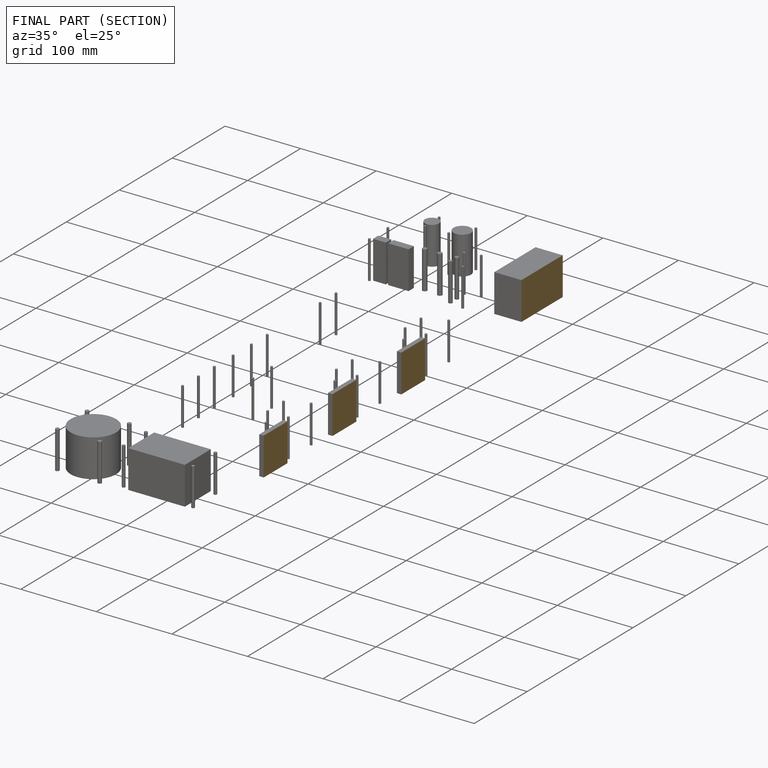
[diagram: finished part — half-section view (interior)]
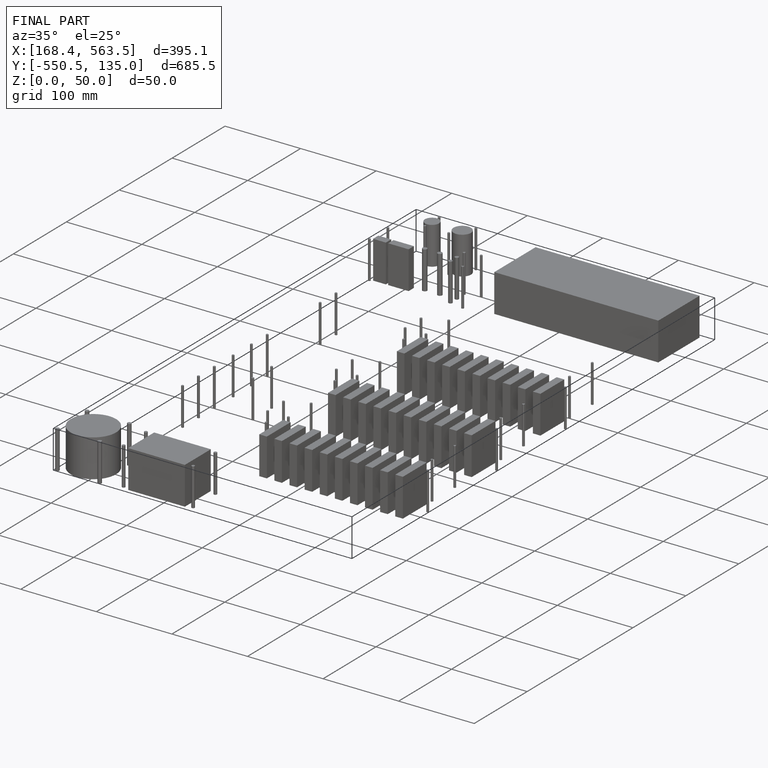
[diagram: finished part — iso view with bounding-box wireframe]
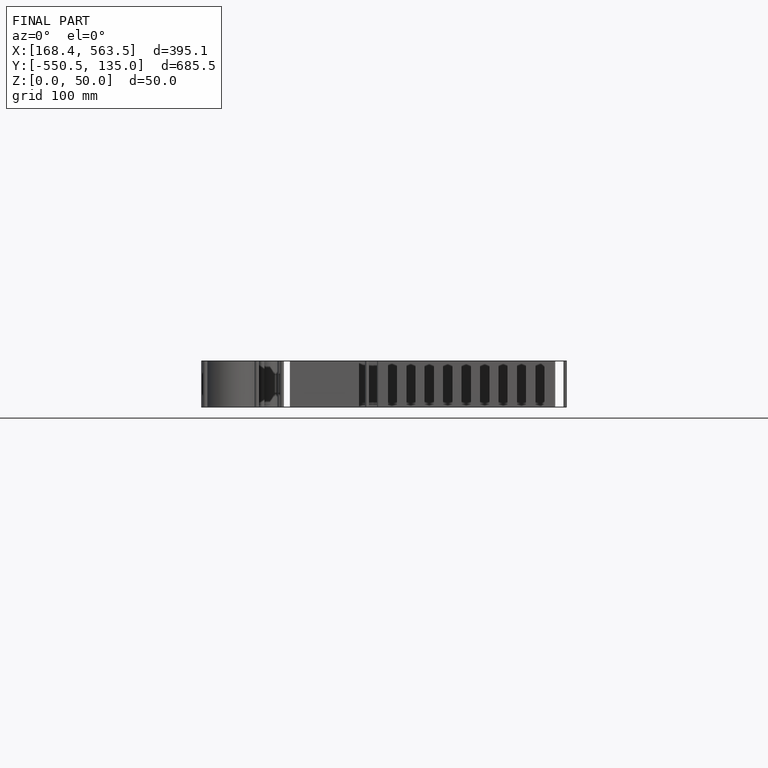
[diagram: finished part — front view with bounding-box wireframe]
